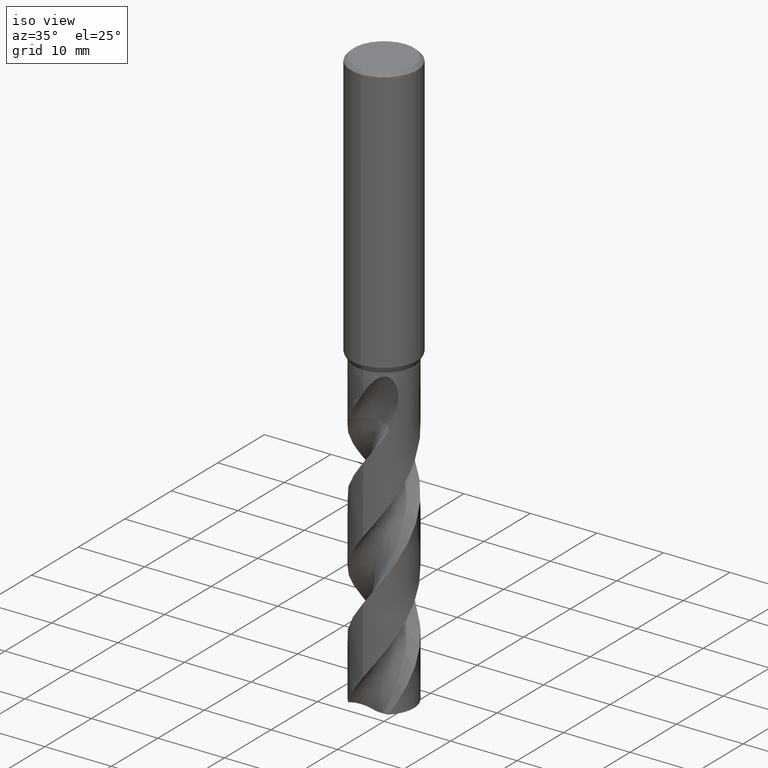
[diagram: clean part render]
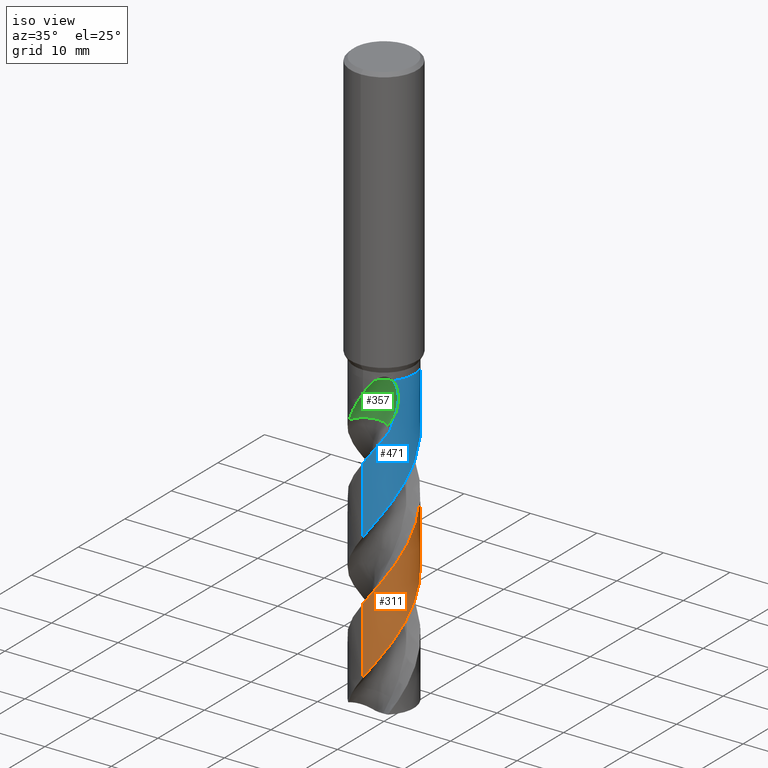
[diagram: same view with three faces highlighted in distinct colors, each labeled with its STEP entity id]
A machine part, iso view with three faces highlighted in distinct colors.
Their STEP definitions:

[orange] entity #311 — the highlighted conical surface has half-angle 0 deg.
#311=ADVANCED_FACE('',(#808),#809,.T.);
#313=EDGE_CURVE('',#571,#619,#811,.T.);
#317=EDGE_CURVE('',#377,#491,#815,.T.);
#377=VERTEX_POINT('',#879);
#463=EDGE_CURVE('',#571,#491,#972,.T.);
#491=VERTEX_POINT('',#1003);
#571=VERTEX_POINT('',#1092);
#611=EDGE_CURVE('',#377,#619,#1138,.T.);
#619=VERTEX_POINT('',#1147);
#808=FACE_OUTER_BOUND('',#1664,.T.);
#809=CONICAL_SURFACE('',#1665,4.49995,2.20448182881086E-006);
#811=LINE('',#1668,#1669);
#815=LINE('',#1676,#1677);
#879=CARTESIAN_POINT('',(-4.1656437967118E-015,-4.49998967546559,-82.6787048212013));
#972=B_SPLINE_CURVE_WITH_KNOTS('',3,(#3671,#3672,#3673,#3674,#3675,#3676,#3677,#3678,#3679,#3680,#3681,#3682,#3683,#3684,#3685,#3686,#3687,#3688,#3689,#3690,#3691,#3692,#3693,#3694,#3695,#3696,#3697,#3698,#3699,#3700,#3701,#3702,#3703,#3704,#3705,#3706,#3707,#3708,#3709,#3710,#3711,#3712,#3713,#3714,#3715,#3716,#3717,#3718,#3719,#3720,#3721,#3722,#3723,#3724,#3725,#3726,#3727,#3728,#3729,#3730,#3731,#3732,#3733,#3734,#3735,#3736,#3737,#3738,#3739,#3740,#3741,#3742,#3743,#3744,#3745,#3746,#3747,#3748,#3749,#3750,#3751,#3752,#3753,#3754,#3755,#3756,#3757,#3758,#3759,#3760,#3761,#3762),.UNSPECIFIED.,.F.,.F.,(4,2,2,2,2,2,2,2,2,2,2,2,2,2,2,2,2,2,2,2,2,2,2,2,2,2,2,2,2,2,2,2,2,2,2,2,2,2,2,2,2,2,2,2,2,4),(0.0,0.18683790359587,0.303060575358205,0.370177943652661,0.861059292407231,1.0336613293908,1.144436130255,1.2486872481506,1.38874266630015,1.54454257304688,1.58485242873205,2.1698954438549,2.55907528347273,2.95156308593388,3.37161300508622,4.52186148246892,5.05269924747359,7.48727282725072,8.10399743339253,9.34060582031127,9.48730899730632,11.0891194292907,13.5788627031115,14.8125527251756,16.0436996368139,18.6294357483051,19.0542806023093,20.6879571243659,21.9317965502293,21.9807798994464,24.8028794454602,25.2510841381525,26.8041715479037,29.2919290876659,30.5258848129155,31.7529386297897,33.6201044852787,34.8491749314263,37.431729547501,37.8536049763399,39.4823315072267,41.629333827577,43.2294519417304,44.4325255172341,46.2472505502495,48.0718266755914),.UNSPECIFIED.);
#1003=CARTESIAN_POINT('',(-1.05702068724905E-015,-4.49996747261341,-72.6070172730487));
#1092=CARTESIAN_POINT('',(4.68682386247783E-013,4.4999253413454,-53.4953750419703));
#1138=B_SPLINE_CURVE_WITH_KNOTS('',3,(#4694,#4695,#4696,#4697,#4698,#4699,#4700,#4701,#4702,#4703,#4704,#4705,#4706,#4707,#4708,#4709,#4710,#4711,#4712,#4713,#4714,#4715,#4716,#4717,#4718,#4719,#4720,#4721,#4722,#4723,#4724,#4725,#4726,#4727,#4728,#4729,#4730,#4731,#4732,#4733,#4734,#4735,#4736,#4737,#4738,#4739,#4740,#4741,#4742,#4743,#4744,#4745,#4746,#4747,#4748,#4749,#4750,#4751,#4752,#4753,#4754,#4755,#4756,#4757,#4758,#4759,#4760,#4761,#4762,#4763,#4764,#4765,#4766,#4767,#4768,#4769,#4770,#4771,#4772,#4773),.UNSPECIFIED.,.F.,.F.,(4,2,2,2,2,2,2,2,2,2,2,2,2,2,2,2,2,2,2,2,2,2,2,2,2,2,2,2,2,2,2,2,2,2,2,2,2,2,2,4),(0.0,2.33680212910897,3.27924067887444,5.4592230345403,6.51468087450437,7.75993383269143,10.2223819571482,10.8330408138003,13.2978420873042,13.8876874891027,16.3592074409962,17.349163024776,19.5602745229972,20.1418048250435,22.6210733348974,23.4968128668138,25.9745633385095,26.5889144253962,29.0682132855279,29.6639600579411,32.1502943909303,33.248890918656,35.42230125904,35.9611128423146,38.376432469333,39.6141700968301,40.127823779556,40.6099819134643,42.407537256508,43.3447997838244,43.8793749484293,45.7265513681427,46.9465694555488,48.2985215131928,48.9744437533264,49.4647785574207,49.904773406731,50.4698778533234,51.6695420671085,53.4365331377016),.UNSPECIFIED.);
#1147=CARTESIAN_POINT('',(2.72577102974582E-014,4.49994754214656,-63.5661322044039));
#1664=EDGE_LOOP('',(#5284,#5285,#5286,#5287));
#1665=AXIS2_PLACEMENT_3D('',#5288,#5289,#5290);
#1668=CARTESIAN_POINT('',(-5.51641727481669E-016,4.49995,-64.6810669729011));
#1669=VECTOR('',#5291,1.0);
#1676=CARTESIAN_POINT('',(5.50491744894932E-016,-4.49995,-64.6810669729011));
#1677=VECTOR('',#5293,1.0);
#3671=CARTESIAN_POINT('',(-3.12778793643585,3.23514724931657,-48.809));
#3672=CARTESIAN_POINT('',(-3.10234241230073,3.25974851338234,-48.8602446530444));
#3673=CARTESIAN_POINT('',(-3.07653912192927,3.28411598617549,-48.9114458344227));
#3674=CARTESIAN_POINT('',(-3.03398033542783,3.32335597496742,-48.9943801691706));
#3675=CARTESIAN_POINT('',(-3.01751085060052,3.33831798367657,-49.0261203188842));
#3676=CARTESIAN_POINT('',(-2.99124463757365,3.36182427072306,-49.076141171942));
#3677=CARTESIAN_POINT('',(-2.98157551341833,3.37040296022369,-49.0944295868799));
#3678=CARTESIAN_POINT('',(-2.90068589815738,3.44154702731484,-49.2463568399934));
#3679=CARTESIAN_POINT('',(-2.82772616152931,3.50181627341295,-49.3764496731637));
#3680=CARTESIAN_POINT('',(-2.72342923033344,3.58236770600933,-49.5536717763989));
#3681=CARTESIAN_POINT('',(-2.69597691172005,3.60307552425301,-49.599572852649));
#3682=CARTESIAN_POINT('',(-2.65029510809127,3.63671278882903,-49.6748955758792));
#3683=CARTESIAN_POINT('',(-2.63231258702841,3.64975049493423,-49.7042845693022));
#3684=CARTESIAN_POINT('',(-2.59714782310832,3.67484910160833,-49.7613124751894));
#3685=CARTESIAN_POINT('',(-2.57999781226208,3.68691014689667,-49.7889250000194));
#3686=CARTESIAN_POINT('',(-2.53956443354151,3.71492443083201,-49.8536308174126));
#3687=CARTESIAN_POINT('',(-2.51622719378134,3.73077114375857,-49.8906754415509));
#3688=CARTESIAN_POINT('',(-2.4666067681486,3.76378722329975,-49.9689853235328));
#3689=CARTESIAN_POINT('',(-2.44032896177776,3.78087731938001,-50.0101912737705));
#3690=CARTESIAN_POINT('',(-2.40707712762518,3.80201331580773,-50.0621631205709));
#3691=CARTESIAN_POINT('',(-2.40030885819585,3.80628994494193,-50.0727352217059));
#3692=CARTESIAN_POINT('',(-2.29391635802218,3.87311591370691,-50.2389035487542));
#3693=CARTESIAN_POINT('',(-2.19266494945719,3.9312693868656,-50.3963700191282));
#3694=CARTESIAN_POINT('',(-2.02201022190424,4.0207800931677,-50.6579561891188));
#3695=CARTESIAN_POINT('',(-1.9529976408044,4.05474758461695,-50.7627539184552));
#3696=CARTESIAN_POINT('',(-1.81283564170355,4.11933364242733,-50.9729718410298));
#3697=CARTESIAN_POINT('',(-1.74152600440663,4.14998903565729,-51.0786114782123));
#3698=CARTESIAN_POINT('',(-1.59209338964234,4.20968444515237,-51.2968461371374));
#3699=CARTESIAN_POINT('',(-1.51419199593283,4.23832924907109,-51.408799569282));
#3700=CARTESIAN_POINT('',(-1.21933659653469,4.33756213953638,-51.8284392771185));
#3701=CARTESIAN_POINT('',(-0.998312203470115,4.39368353176344,-52.1342607248324));
#3702=CARTESIAN_POINT('',(-0.670699929667548,4.45089878420606,-52.5839118505092));
#3703=CARTESIAN_POINT('',(-0.56673476256252,4.46532384528898,-52.7261188433654));
#3704=CARTESIAN_POINT('',(0.0158593566014373,4.52551586542829,-53.5196625584769));
#3705=CARTESIAN_POINT('',(0.499315127278846,4.4979838398345,-54.1646465473792));
#3706=CARTESIAN_POINT('',(1.08860454669283,4.36797144679173,-54.9805246186605));
#3707=CARTESIAN_POINT('',(1.20658027979862,4.33686466775295,-55.1454224296842));
#3708=CARTESIAN_POINT('',(1.55683757899981,4.22911500182635,-55.6410268865573));
#3709=CARTESIAN_POINT('',(1.78435609493581,4.13827295236342,-55.9710169332416));
#3710=CARTESIAN_POINT('',(2.02940858502102,4.01643220847865,-56.3408102490221));
#3711=CARTESIAN_POINT('',(2.05526586295113,4.00326238467319,-56.3800192543787));
#3712=CARTESIAN_POINT('',(2.36194350630933,3.84330855619634,-56.8475809040067));
#3713=CARTESIAN_POINT('',(2.62668260222406,3.66747604444923,-57.2757420245328));
#3714=CARTESIAN_POINT('',(3.25007789231719,3.15104322114891,-58.3700082825769));
#3715=CARTESIAN_POINT('',(3.57511033457675,2.7767376310157,-59.0302286434329));
#3716=CARTESIAN_POINT('',(3.96073664821482,2.14976783948637,-60.0264826331519));
#3717=CARTESIAN_POINT('',(4.0714889833312,1.93185777441371,-60.355952693659));
#3718=CARTESIAN_POINT('',(4.2564462157419,1.48038173816258,-61.0149840046461));
#3719=CARTESIAN_POINT('',(4.33031295220701,1.24786419378132,-61.3430649871292));
#3720=CARTESIAN_POINT('',(4.49985094227359,0.512237703931023,-62.3642128600196));
#3721=CARTESIAN_POINT('',(4.52897578723537,-0.00241840789649028,-63.051440829232));
#3722=CARTESIAN_POINT('',(4.46127844489325,-0.594646182103736,-63.8564810470677));
#3723=CARTESIAN_POINT('',(4.44938890987139,-0.677893792995244,-63.9700389476567));
#3724=CARTESIAN_POINT('',(4.3805352380679,-1.07932261725527,-64.5208244066011));
#3725=CARTESIAN_POINT('',(4.29170119064676,-1.39120129412134,-64.9575883471686));
#3726=CARTESIAN_POINT('',(4.07766262936973,-1.91907921244736,-65.7274695379777));
#3727=CARTESIAN_POINT('',(3.96655753013111,-2.13931391151557,-66.0592844478257));
#3728=CARTESIAN_POINT('',(3.83290145888576,-2.35765661126346,-66.4050958174115));
#3729=CARTESIAN_POINT('',(3.82781152138669,-2.36591154726916,-66.4181975435707));
#3730=CARTESIAN_POINT('',(3.52795217461566,-2.84872821486921,-67.1861264725194));
#3731=CARTESIAN_POINT('',(3.14712120059219,-3.26462536762721,-67.936918975901));
#3732=CARTESIAN_POINT('',(2.62884158444171,-3.65331454758851,-68.8117669480431));
#3733=CARTESIAN_POINT('',(2.55627937069931,-3.70444923681183,-68.9315900207931));
#3734=CARTESIAN_POINT('',(2.22579729709219,-3.92301107329704,-69.4672515078753));
#3735=CARTESIAN_POINT('',(1.95256845644276,-4.06591988853053,-69.8828299292249));
#3736=CARTESIAN_POINT('',(1.2093535757821,-4.36231586922043,-70.9645587041532));
#3737=CARTESIAN_POINT('',(0.725041770083323,-4.46837157989668,-71.6248842837038));
#3738=CARTESIAN_POINT('',(-0.0104272915693735,-4.50657537603774,-72.6215076190853));
#3739=CARTESIAN_POINT('',(-0.255050474242373,-4.49938143831887,-72.9512980105845));
#3740=CARTESIAN_POINT('',(-0.739645845688141,-4.44541948591604,-73.6098715099131));
#3741=CARTESIAN_POINT('',(-0.978543290623478,-4.39899747922616,-73.9372063860257));
#3742=CARTESIAN_POINT('',(-1.56836372434701,-4.23397917782504,-74.7658042780405));
#3743=CARTESIAN_POINT('',(-1.91089269757003,-4.09086205534607,-75.2646042925274));
#3744=CARTESIAN_POINT('',(-2.44364882964785,-3.78651249623113,-76.0933679048809));
#3745=CARTESIAN_POINT('',(-2.64485745440732,-3.6487984316127,-76.4212878548532));
#3746=CARTESIAN_POINT('',(-3.23108546525324,-3.17353845786324,-77.4421892566622));
#3747=CARTESIAN_POINT('',(-3.57078756394346,-2.78592024738515,-78.1292916760643));
#3748=CARTESIAN_POINT('',(-3.88170339289574,-2.27798257559527,-78.9335620250523));
#3749=CARTESIAN_POINT('',(-3.92334285906946,-2.20549286847971,-79.046448501752));
#3750=CARTESIAN_POINT('',(-4.11577428801733,-1.84779005379825,-79.5957226188071));
#3751=CARTESIAN_POINT('',(-4.23766630888224,-1.54796997910848,-80.0316743227031));
#3752=CARTESIAN_POINT('',(-4.44345601546818,-0.8286077591632,-81.04302976595));
#3753=CARTESIAN_POINT('',(-4.5018337335531,-0.405151729452918,-81.614246663171));
#3754=CARTESIAN_POINT('',(-4.49853578134804,0.336880451762036,-82.6183263289882));
#3755=CARTESIAN_POINT('',(-4.46366228385649,0.6529293680291,-83.0457214980072));
#3756=CARTESIAN_POINT('',(-4.34471970530647,1.19593328507147,-83.7962806612961));
#3757=CARTESIAN_POINT('',(-4.27527148843984,1.42433322627444,-84.1175951220404));
#3758=CARTESIAN_POINT('',(-4.05672364981276,1.98041295886397,-84.9265110627169));
#3759=CARTESIAN_POINT('',(-3.8856152210784,2.29813637602568,-85.4118136863882));
#3760=CARTESIAN_POINT('',(-3.46992935423713,2.88798469074985,-86.3866803014667));
#3761=CARTESIAN_POINT('',(-3.22660888872388,3.15751450903315,-86.8733754637238));
#3762=CARTESIAN_POINT('',(-2.95363779304501,3.39499982142802,-87.3621339458021));
#4694=CARTESIAN_POINT('',(-3.13168728307313,-3.23149110489847,-87.3621339458021));
#4695=CARTESIAN_POINT('',(-2.79986246655599,-3.55306566713435,-86.7350611147313));
#4696=CARTESIAN_POINT('',(-2.41931807136374,-3.82268708352842,-86.1100701296137));
#4697=CARTESIAN_POINT('',(-1.83521490318923,-4.11303866146682,-85.2321782883056));
#4698=CARTESIAN_POINT('',(-1.66238672643526,-4.18586752701925,-84.980573078044));
#4699=CARTESIAN_POINT('',(-1.0767758910533,-4.39068346058886,-84.1441869429795));
#4700=CARTESIAN_POINT('',(-0.649912593156497,-4.47380378378019,-83.5561029921032));
#4701=CARTESIAN_POINT('',(-0.00820594335859307,-4.50486006235474,-82.6893896842287));
#4702=CARTESIAN_POINT('',(0.201551859395831,-4.50035239897883,-82.4076885535386));
#4703=CARTESIAN_POINT('',(0.656338493267588,-4.45872265536625,-81.7913076068468));
#4704=CARTESIAN_POINT('',(0.899759727909462,-4.41598605868359,-81.4559596912196));
#4705=CARTESIAN_POINT('',(1.60900420617697,-4.23060356570481,-80.4626725958122));
#4706=CARTESIAN_POINT('',(2.05647265345239,-4.03201261376533,-79.8159416004618));
#4707=CARTESIAN_POINT('',(2.56422064246406,-3.69988403780334,-78.9928933270896));
#4708=CARTESIAN_POINT('',(2.66228396728069,-3.62996305221645,-78.8288730072809));
#4709=CARTESIAN_POINT('',(3.14245993197919,-3.25759389917791,-78.0047503083298));
#4710=CARTESIAN_POINT('',(3.47612276311307,-2.89885542264653,-77.3573854200472));
#4711=CARTESIAN_POINT('',(3.81044268746321,-2.39664010792831,-76.5396648853197));
#4712=CARTESIAN_POINT('',(3.87107700662628,-2.29740408074124,-76.3813128017781));
#4713=CARTESIAN_POINT('',(4.16557103945988,-1.77063976705101,-75.5622535818993));
#4714=CARTESIAN_POINT('',(4.33269860503441,-1.30963320068644,-74.9141332192812));
#4715=CARTESIAN_POINT('',(4.45870752892896,-0.638585720457889,-73.989530891933));
#4716=CARTESIAN_POINT('',(4.48219751154566,-0.444767125691329,-73.7238506769823));
#4717=CARTESIAN_POINT('',(4.5172513771739,0.186109210999759,-72.8685584158562));
#4718=CARTESIAN_POINT('',(4.47793965024903,0.622739679819713,-72.2872016436771));
#4719=CARTESIAN_POINT('',(4.3498645617691,1.15823578961959,-71.5411540388604));
#4720=CARTESIAN_POINT('',(4.31900559072666,1.26844007559974,-71.3853522646004));
#4721=CARTESIAN_POINT('',(4.13486308967079,1.84121509419625,-70.5684913559287));
#4722=CARTESIAN_POINT('',(3.9113523625305,2.27793273361661,-69.9199799030472));
#4723=CARTESIAN_POINT('',(3.51955756022668,2.8092784945475,-69.0263259088699));
#4724=CARTESIAN_POINT('',(3.40962147820031,2.94172133793468,-68.792020286025));
#4725=CARTESIAN_POINT('',(2.96041433069383,3.4238286958288,-67.8989219777058));
#4726=CARTESIAN_POINT('',(2.57323997192767,3.72350406430365,-67.2520853163403));
#4727=CARTESIAN_POINT('',(2.03985329574824,4.01286921696057,-66.4289341975398));
#4728=CARTESIAN_POINT('',(1.93176151747013,4.06601026780428,-66.2649185261708));
#4729=CARTESIAN_POINT('',(1.3761241610763,4.31195864088622,-65.4408821666907));
#4730=CARTESIAN_POINT('',(0.902047794887706,4.43540226865888,-64.7935875376313));
#4731=CARTESIAN_POINT('',(0.300932586266201,4.49139796043046,-63.9752858705775));
#4732=CARTESIAN_POINT('',(0.184344415297354,4.49768616769331,-63.8162958364489));
#4733=CARTESIAN_POINT('',(-0.419597722003774,4.5067588779907,-62.9965448987817));
#4734=CARTESIAN_POINT('',(-0.904715611935219,4.43493953695607,-62.3483403358814));
#4735=CARTESIAN_POINT('',(-1.57434901872603,4.22105631508305,-61.3963752196446));
#4736=CARTESIAN_POINT('',(-1.77463918796129,4.14085808168044,-61.1029718124997));
#4737=CARTESIAN_POINT('',(-2.3526013555818,3.85966336441614,-60.2337326683595));
#4738=CARTESIAN_POINT('',(-2.70761979869309,3.61935011533647,-59.6649371569323));
#4739=CARTESIAN_POINT('',(-3.10136216637176,3.26222941209874,-58.9439874085501));
#4740=CARTESIAN_POINT('',(-3.17689066124188,3.18871549713084,-58.8004019559114));
#4741=CARTESIAN_POINT('',(-3.57657420914357,2.77141348637392,-58.0156712492933));
#4742=CARTESIAN_POINT('',(-3.84789584878266,2.38063246130944,-57.3858962152384));
#4743=CARTESIAN_POINT('',(-4.15893889408506,1.73537271111702,-56.4180829487213));
#4744=CARTESIAN_POINT('',(-4.24637478634398,1.50880064381814,-56.0887648579445));
#4745=CARTESIAN_POINT('',(-4.34368801736214,1.17977584311203,-55.6246663064232));
#4746=CARTESIAN_POINT('',(-4.36898742268578,1.08233482933922,-55.4886814145431));
#4747=CARTESIAN_POINT('',(-4.41166416110175,0.891913353924181,-55.2248479962655));
#4748=CARTESIAN_POINT('',(-4.42941527560923,0.799099540604124,-55.0970194263374));
#4749=CARTESIAN_POINT('',(-4.49945639738542,0.358075873489744,-54.4930561263145));
#4750=CARTESIAN_POINT('',(-4.51371182901481,0.00478684639450966,-54.0190391709624));
#4751=CARTESIAN_POINT('',(-4.47238740307571,-0.529964591694633,-53.2948562139244));
#4752=CARTESIAN_POINT('',(-4.44703977480557,-0.711788546825658,-53.0474653130317));
#4753=CARTESIAN_POINT('',(-4.3901296919894,-0.993461706639181,-52.6567870282656));
#4754=CARTESIAN_POINT('',(-4.36604721815895,-1.09443730250362,-52.5147560745739));
#4755=CARTESIAN_POINT('',(-4.24279968463427,-1.54192302628225,-51.8835295949365));
#4756=CARTESIAN_POINT('',(-4.12650462795643,-1.80429687057606,-51.5071005788542));
#4757=CARTESIAN_POINT('',(-3.99194950767507,-2.08051816437917,-51.1029174702718));
#4758=CARTESIAN_POINT('',(-3.93470712623882,-2.18665177214611,-50.9420596015931));
#4759=CARTESIAN_POINT('',(-3.80743023350446,-2.40209205250394,-50.5979444039779));
#4760=CARTESIAN_POINT('',(-3.73739988717134,-2.50929104302828,-50.4160548071858));
#4761=CARTESIAN_POINT('',(-3.62930256052059,-2.66106780747601,-50.1370178129093));
#4762=CARTESIAN_POINT('',(-3.60651631430297,-2.69151781105095,-50.0769849604618));
#4763=CARTESIAN_POINT('',(-3.56013542912321,-2.75240426658002,-49.9616313655587));
#4764=CARTESIAN_POINT('',(-3.53999291938334,-2.77827791522591,-49.9136236063034));
#4765=CARTESIAN_POINT('',(-3.50040168380363,-2.82795790984955,-49.8233069758375));
#4766=CARTESIAN_POINT('',(-3.48112778255354,-2.85166103650283,-49.7809964560704));
#4767=CARTESIAN_POINT('',(-3.43573578995514,-2.90629782328638,-49.6851620033897));
#4768=CARTESIAN_POINT('',(-3.40928085134258,-2.9373099176569,-49.6319780403548));
#4769=CARTESIAN_POINT('',(-3.32349041317262,-3.03504110962034,-49.4678078498903));
#4770=CARTESIAN_POINT('',(-3.26094814653178,-3.10235402369362,-49.3596572921212));
#4771=CARTESIAN_POINT('',(-3.09441593189277,-3.27011524922245,-49.0988921664458));
#4772=CARTESIAN_POINT('',(-2.98599314281817,-3.3699772282562,-48.9513064665904));
#4773=CARTESIAN_POINT('',(-2.86743909114319,-3.4680005995758,-48.809));
#5284=ORIENTED_EDGE('',*,*,#313,.F.);
#5285=ORIENTED_EDGE('',*,*,#463,.T.);
#5286=ORIENTED_EDGE('',*,*,#317,.F.);
#5287=ORIENTED_EDGE('',*,*,#611,.T.);
#5288=CARTESIAN_POINT('',(0.0,0.0,-64.6810669729011));
#5289=DIRECTION('',(0.0,-0.0,-1.0));
#5290=DIRECTION('',(0.0,1.0,0.0));
#5291=DIRECTION('',(-2.69962245444557E-022,2.20448182880907E-006,-0.99999999999757));
#5293=DIRECTION('',(-2.69962245444557E-022,2.20448182880907E-006,0.99999999999757));

[blue] entity #471 — the highlighted conical surface has half-angle 0 deg.
#279=VERTEX_POINT('',#775);
#293=VERTEX_POINT('',#789);
#335=EDGE_CURVE('',#515,#393,#835,.T.);
#387=EDGE_CURVE('',#583,#495,#890,.T.);
#393=VERTEX_POINT('',#896);
#445=VERTEX_POINT('',#952);
#467=EDGE_CURVE('',#445,#293,#976,.T.);
#471=ADVANCED_FACE('',(#980),#981,.T.);
#495=VERTEX_POINT('',#1007);
#515=VERTEX_POINT('',#1029);
#533=EDGE_CURVE('',#735,#583,#1049,.T.);
#583=VERTEX_POINT('',#1107);
#627=EDGE_CURVE('',#735,#293,#1155,.T.);
#645=EDGE_CURVE('',#393,#279,#1176,.T.);
#693=EDGE_CURVE('',#515,#495,#1230,.T.);
#711=EDGE_CURVE('',#279,#445,#1249,.T.);
#735=VERTEX_POINT('',#1274);
#775=CARTESIAN_POINT('',(3.66130318037754,-2.6161126192005,-46.3450274609782));
#789=CARTESIAN_POINT('',(-4.78452782545262E-013,-4.49992534134538,-53.4953750419703));
#835=CIRCLE('',#1703,4.4999);
#890=B_SPLINE_CURVE_WITH_KNOTS('',3,(#1871,#1872,#1873,#1874,#1875,#1876,#1877,#1878,#1879,#1880,#1881,#1882,#1883,#1884),.UNSPECIFIED.,.F.,.F.,(4,2,2,2,2,2,4),(0.0,2.20475554731741,3.40859553382175,4.49896063714113,5.76568451325686,7.28729789347321,8.07029609891399),.UNSPECIFIED.);
#896=CARTESIAN_POINT('',(3.40940975058335,-2.9368393150847,-42.0));
#952=CARTESIAN_POINT('',(3.12778793643585,-3.23514724931657,-48.809));
#976=B_SPLINE_CURVE_WITH_KNOTS('',3,(#3787,#3788,#3789,#3790,#3791,#3792,#3793,#3794,#3795,#3796,#3797,#3798,#3799,#3800,#3801,#3802,#3803,#3804,#3805,#3806,#3807,#3808,#3809,#3810,#3811,#3812,#3813,#3814,#3815,#3816,#3817,#3818,#3819,#3820,#3821,#3822,#3823,#3824,#3825,#3826,#3827,#3828,#3829,#3830,#3831,#3832,#3833,#3834,#3835,#3836,#3837,#3838,#3839,#3840,#3841,#3842,#3843,#3844,#3845,#3846,#3847,#3848,#3849,#3850,#3851,#3852,#3853,#3854,#3855,#3856,#3857,#3858,#3859,#3860,#3861,#3862,#3863,#3864,#3865,#3866,#3867,#3868,#3869,#3870,#3871,#3872,#3873,#3874,#3875,#3876,#3877,#3878),.UNSPECIFIED.,.F.,.F.,(4,2,2,2,2,2,2,2,2,2,2,2,2,2,2,2,2,2,2,2,2,2,2,2,2,2,2,2,2,2,2,2,2,2,2,2,2,2,2,2,2,2,2,2,2,4),(0.0,0.186837903831747,0.303060575486544,0.370177943563527,0.861059292617235,1.03366132974205,1.1444361306066,1.24868724846205,1.38874266653107,1.54454257318178,1.58485242890453,2.16989544355807,2.55907528289923,2.9515630851444,3.37161299936185,4.52186147595583,5.05269922730908,7.48727273301139,8.10399733752969,9.34060571961746,9.48730890678113,11.0891192293209,13.5788625091689,14.8125525260481,16.0436994481211,18.6294355339242,19.0542804417132,20.6879567547197,21.9317961791301,21.9807795358462,24.802878485986,25.2510834182851,26.8041700987059,29.2919276600639,30.525883345021,31.7529372328043,33.6201010355565,34.8491716611566,37.4317258425612,37.8536020730467,39.4823253270607,41.6293292643649,43.2294483616723,44.4325228181478,46.2472490038725,48.071826279848),.UNSPECIFIED.);
#980=FACE_OUTER_BOUND('',#3902,.T.);
#981=CONICAL_SURFACE('',#3903,4.49995,2.20448182881086E-006);
#1007=CARTESIAN_POINT('',(-1.33320944013009E-012,4.49990446542857,-44.0256136904849));
#1029=CARTESIAN_POINT('',(-5.51352983418506E-016,4.4999,-42.0));
#1049=B_SPLINE_CURVE_WITH_KNOTS('',3,(#4280,#4281,#4282,#4283,#4284,#4285,#4286,#4287,#4288,#4289,#4290,#4291,#4292,#4293,#4294,#4295,#4296,#4297,#4298,#4299,#4300,#4301,#4302,#4303,#4304,#4305,#4306,#4307,#4308,#4309,#4310,#4311,#4312,#4313,#4314,#4315,#4316,#4317,#4318,#4319,#4320,#4321,#4322,#4323,#4324,#4325,#4326,#4327,#4328,#4329,#4330,#4331,#4332,#4333,#4334,#4335,#4336,#4337,#4338,#4339,#4340,#4341,#4342,#4343,#4344,#4345,#4346,#4347,#4348,#4349,#4350,#4351,#4352,#4353,#4354,#4355,#4356,#4357,#4358,#4359),.UNSPECIFIED.,.F.,.F.,(4,2,2,2,2,2,2,2,2,2,2,2,2,2,2,2,2,2,2,2,2,2,2,2,2,2,2,2,2,2,2,2,2,2,2,2,2,2,2,4),(0.0,2.33680212377957,3.27924067551566,5.45922298406233,6.51468084761761,7.75993380819906,10.2223819340773,10.8330407916629,13.2978420661797,13.8876874497238,16.3592074030605,17.349162844891,19.5602718468744,20.1418046346869,22.6210732071348,23.496812256514,25.9745628110826,26.5889139295122,29.0682129147522,29.6639591988363,32.1502937223343,33.2488865367003,35.4222711966253,35.9610805510369,38.3763465433414,39.6140868550911,40.1277455289277,40.6099100932209,42.4074824584705,43.3430638700968,43.8766262820531,45.7315283011536,46.9512835155706,48.305281477593,48.9765393567973,49.4547912362447,49.8859614607023,50.442557883741,51.5745962522468,53.3377781698529),.UNSPECIFIED.);
#1107=CARTESIAN_POINT('',(2.86743909114319,3.4680005995758,-48.809));
#1155=LINE('',#4806,#4807);
#1176=B_SPLINE_CURVE_WITH_KNOTS('',3,(#4845,#4846,#4847,#4848,#4849,#4850,#4851,#4852),.UNSPECIFIED.,.F.,.F.,(4,2,2,4),(0.0,0.84358069295229,2.02320379737333,3.14361693651512),.UNSPECIFIED.);
#1230=LINE('',#4965,#4966);
#1249=B_SPLINE_CURVE_WITH_KNOTS('',3,(#5105,#5106,#5107,#5108),.UNSPECIFIED.,.F.,.F.,(4,4),(0.0,2.58609769236665),.UNSPECIFIED.);
#1274=CARTESIAN_POINT('',(-3.5251749755537E-014,-4.49994754214657,-63.566132204404));
#1703=AXIS2_PLACEMENT_3D('',#5321,#5322,#5323);
#1871=CARTESIAN_POINT('',(2.86743909114319,3.4680005995758,-48.809));
#1872=CARTESIAN_POINT('',(2.57060818980487,3.71342683192748,-48.1830905773919));
#1873=CARTESIAN_POINT('',(2.22931727810948,3.93159578990252,-47.5995410141835));
#1874=CARTESIAN_POINT('',(1.63420581592681,4.19900683373959,-46.6246875230133));
#1875=CARTESIAN_POINT('',(1.42005682924299,4.27593078298411,-46.2817029220987));
#1876=CARTESIAN_POINT('',(1.00549246402143,4.39089544723335,-45.617778438669));
#1877=CARTESIAN_POINT('',(0.806927916765822,4.43151205506276,-45.2999326188931));
#1878=CARTESIAN_POINT('',(0.377121619451696,4.49013100164452,-44.6148969472526));
#1879=CARTESIAN_POINT('',(0.142289265967091,4.50389295240663,-44.2423446901563));
#1880=CARTESIAN_POINT('',(-0.379212216417572,4.49292245619943,-43.4453366416554));
#1881=CARTESIAN_POINT('',(-0.688409043272584,4.45899345055526,-42.991833151282));
#1882=CARTESIAN_POINT('',(-1.17218084210875,4.3478203201446,-42.3850996714974));
#1883=CARTESIAN_POINT('',(-1.34935783848793,4.29729149417252,-42.1804716631296));
#1884=CARTESIAN_POINT('',(-1.53353171754749,4.23052957456579,-42.0));
#3787=CARTESIAN_POINT('',(3.12778793643585,-3.23514724931657,-48.809));
#3788=CARTESIAN_POINT('',(3.10234241226861,-3.2597485134134,-48.8602446531091));
#3789=CARTESIAN_POINT('',(3.07653912186477,-3.28411598623639,-48.9114458345507));
#3790=CARTESIAN_POINT('',(3.03398033534745,-3.32335597504066,-48.9943801693259));
#3791=CARTESIAN_POINT('',(3.01751085052991,-3.33831798374036,-49.0261203190196));
#3792=CARTESIAN_POINT('',(2.99124463753005,-3.36182427076173,-49.0761411720244));
#3793=CARTESIAN_POINT('',(2.98157551340447,-3.37040296023585,-49.0944295869058));
#3794=CARTESIAN_POINT('',(2.90068589802508,-3.44154702743137,-49.2463568402421));
#3795=CARTESIAN_POINT('',(2.82772616144898,-3.50181627347509,-49.3764496733003));
#3796=CARTESIAN_POINT('',(2.72342923035437,-3.58236770599321,-49.5536717763633));
#3797=CARTESIAN_POINT('',(2.69597691173728,-3.60307552424029,-49.5995728526205));
#3798=CARTESIAN_POINT('',(2.65029510809367,-3.63671278882721,-49.6748955758751));
#3799=CARTESIAN_POINT('',(2.63231258703299,-3.64975049493095,-49.7042845692948));
#3800=CARTESIAN_POINT('',(2.59714782310976,-3.67484910160729,-49.761312475187));
#3801=CARTESIAN_POINT('',(2.57999781226635,-3.68691014689375,-49.7889250000126));
#3802=CARTESIAN_POINT('',(2.53956443353887,-3.71492443083386,-49.8536308174169));
#3803=CARTESIAN_POINT('',(2.51622719377732,-3.73077114376126,-49.8906754415572));
#3804=CARTESIAN_POINT('',(2.46660676815204,-3.76378722329745,-49.9689853235274));
#3805=CARTESIAN_POINT('',(2.44032896178354,-3.78087731937628,-50.0101912737615));
#3806=CARTESIAN_POINT('',(2.40707712761745,-3.80201331581262,-50.062163120583));
#3807=CARTESIAN_POINT('',(2.40030885817742,-3.80628994495357,-50.0727352217347));
#3808=CARTESIAN_POINT('',(2.2939163579911,-3.8731159137253,-50.2389035488026));
#3809=CARTESIAN_POINT('',(2.19266494943079,-3.93126938687994,-50.3963700191688));
#3810=CARTESIAN_POINT('',(2.02201022188871,-4.02078009317546,-50.6579561891424));
#3811=CARTESIAN_POINT('',(1.95299764078976,-4.05474758462396,-50.7627539184772));
#3812=CARTESIAN_POINT('',(1.81283564167891,-4.11933364243836,-50.9729718410664));
#3813=CARTESIAN_POINT('',(1.74152600437987,-4.14998903566836,-51.0786114782517));
#3814=CARTESIAN_POINT('',(1.59209339050001,-4.20968444480941,-51.2968461358847));
#3815=CARTESIAN_POINT('',(1.51419199766571,-4.23832924843354,-51.4087995667896));
#3816=CARTESIAN_POINT('',(1.21933659926273,-4.33756213876697,-51.8284392733073));
#3817=CARTESIAN_POINT('',(0.998312206256321,-4.39368353112767,-52.1342607209871));
#3818=CARTESIAN_POINT('',(0.670699935154438,-4.45089878331663,-52.5839118429881));
#3819=CARTESIAN_POINT('',(0.566734770698655,-4.46532384419417,-52.7261188322472));
#3820=CARTESIAN_POINT('',(-0.015859331358982,-4.52551586398616,-53.5196625242601));
#3821=CARTESIAN_POINT('',(-0.499315087579334,-4.49798384269997,-54.1646464941883));
#3822=CARTESIAN_POINT('',(-1.08860449423433,-4.3679714598583,-54.9805245455819));
#3823=CARTESIAN_POINT('',(-1.20658022746112,-4.33686468230632,-55.1454223562342));
#3824=CARTESIAN_POINT('',(-1.55683752689931,-4.22911502095645,-55.6410268116212));
#3825=CARTESIAN_POINT('',(-1.78435604317553,-4.13827297463188,-55.9710168572264));
#3826=CARTESIAN_POINT('',(-2.02940853587046,-4.0164322333277,-56.3408101746038));
#3827=CARTESIAN_POINT('',(-2.05526581576621,-4.00326240891239,-56.3800191826851));
#3828=CARTESIAN_POINT('',(-2.36194344377077,-3.84330859286574,-56.8475808059884));
#3829=CARTESIAN_POINT('',(-2.62668252489288,-3.66747609797318,-57.2757418977318));
#3830=CARTESIAN_POINT('',(-3.25007781268484,-3.15104330349848,-58.3700081288985));
#3831=CARTESIAN_POINT('',(-3.57511026528807,-2.77673772047888,-59.0302284910581));
#3832=CARTESIAN_POINT('',(-3.96073659467425,-2.14976793802594,-60.0264824816359));
#3833=CARTESIAN_POINT('',(-4.07148893481931,-1.93185787653775,-60.3559525410837));
#3834=CARTESIAN_POINT('',(-4.25644617912232,-1.48038184380875,-61.0149838539266));
#3835=CARTESIAN_POINT('',(-4.33031292198008,-1.24786429911464,-61.3430648392488));
#3836=CARTESIAN_POINT('',(-4.49985092902717,-0.512237815639434,-62.3642127084475));
#3837=CARTESIAN_POINT('',(-4.52897578676987,0.00241829073285249,-63.0514406722331));
#3838=CARTESIAN_POINT('',(-4.461278459668,0.59464607277115,-63.8564808980749));
#3839=CARTESIAN_POINT('',(-4.44938892507137,0.677893694558919,-63.9700388130362));
#3840=CARTESIAN_POINT('',(-4.38053526630849,1.0793224903605,-64.5208242308006));
#3841=CARTESIAN_POINT('',(-4.29170124064413,1.3912011302957,-64.9575881163032));
#3842=CARTESIAN_POINT('',(-4.07766271978543,1.919079020307,-65.7274692516107));
#3843=CARTESIAN_POINT('',(-3.96655763097424,2.13931372454043,-66.0592841615003));
#3844=CARTESIAN_POINT('',(-3.83290156922936,2.35765643188007,-66.4050955329178));
#3845=CARTESIAN_POINT('',(-3.8278116313329,2.36591136939241,-66.4181972610519));
#3846=CARTESIAN_POINT('',(-3.52795236440081,2.84872795811529,-67.1861260412442));
#3847=CARTESIAN_POINT('',(-3.14712150153651,3.26462505850883,-67.9369184007191));
#3848=CARTESIAN_POINT('',(-2.62884198170034,3.6533142629093,-68.8117662881481));
#3849=CARTESIAN_POINT('',(-2.55627973343941,3.7044489876637,-68.9315894262456));
#3850=CARTESIAN_POINT('',(-2.22579775530522,3.92301080232299,-69.467250788053));
#3851=CARTESIAN_POINT('',(-1.95256905945561,4.06591958825818,-69.8828290205785));
#3852=CARTESIAN_POINT('',(-1.20935435492903,4.36231565426583,-70.964557619747));
#3853=CARTESIAN_POINT('',(-0.725042558754533,4.46837145298939,-71.6248832081504));
#3854=CARTESIAN_POINT('',(0.0104265006090731,4.50657537757854,-72.6215065506577));
#3855=CARTESIAN_POINT('',(0.25504967922626,4.49938148309297,-72.9512969361786));
#3856=CARTESIAN_POINT('',(0.739645071562392,4.44541961562831,-73.6098704518618));
#3857=CARTESIAN_POINT('',(0.978542541252218,4.39899764687424,-73.9372053494915));
#3858=CARTESIAN_POINT('',(1.56836263261244,4.23397954719072,-74.765802719679));
#3859=CARTESIAN_POINT('',(1.91089127333057,4.09086268414897,-75.264602198799));
#3860=CARTESIAN_POINT('',(2.44364722018136,3.78651353733996,-76.0933653209686));
#3861=CARTESIAN_POINT('',(2.64485593508061,3.64879953552928,-76.4212853202528));
#3862=CARTESIAN_POINT('',(3.23108410995579,3.17353982517947,-77.4421866626456));
#3863=CARTESIAN_POINT('',(3.57078632474797,2.78592182135669,-78.1292889918419));
#3864=CARTESIAN_POINT('',(3.88170243000453,2.27798422224122,-78.9335594491094));
#3865=CARTESIAN_POINT('',(3.92334200551249,2.20549439294468,-79.0464461404265));
#3866=CARTESIAN_POINT('',(4.11577333256719,1.8477920698858,-79.5957196018109));
#3867=CARTESIAN_POINT('',(4.23766527825237,1.54797266578176,-80.0316704434922));
#3868=CARTESIAN_POINT('',(4.44345545797061,0.828610915453142,-81.0430254629626));
#3869=CARTESIAN_POINT('',(4.50183350626,0.405154597912542,-81.6142427820767));
#3870=CARTESIAN_POINT('',(4.49853597064578,-0.336878111662014,-82.6183231622192));
#3871=CARTESIAN_POINT('',(4.46366260851437,-0.652927245786916,-83.0457186044058));
#3872=CARTESIAN_POINT('',(4.34472018329143,-1.19593158420669,-83.7962782803493));
#3873=CARTESIAN_POINT('',(4.27527199922191,-1.42433172311235,-84.1175929764132));
#3874=CARTESIAN_POINT('',(4.05672418246192,-1.98041191055385,-84.9265094759404));
#3875=CARTESIAN_POINT('',(3.88561571511913,-2.29813557751629,-85.4118124191682));
#3876=CARTESIAN_POINT('',(3.46992966972464,-2.88798434108698,-86.3866796707701));
#3877=CARTESIAN_POINT('',(3.22660906614556,-3.15751435467596,-86.8733751460479));
#3878=CARTESIAN_POINT('',(2.95363779304501,-3.394999821428,-87.362133945802));
#3902=EDGE_LOOP('',(#5455,#5456,#5457,#5458,#5459,#5460,#5461,#5462));
#3903=AXIS2_PLACEMENT_3D('',#5463,#5464,#5465);
#4280=CARTESIAN_POINT('',(3.13168728307313,3.23149110489847,-87.3621339458021));
#4281=CARTESIAN_POINT('',(2.79986246731276,3.55306566640095,-86.7350611161615));
#4282=CARTESIAN_POINT('',(2.41931807309393,3.82268708230373,-86.1100701324407));
#4283=CARTESIAN_POINT('',(1.83521490573001,4.11303866035091,-85.2321782920329));
#4284=CARTESIAN_POINT('',(1.66238672864993,4.1858675261564,-84.9805730812409));
#4285=CARTESIAN_POINT('',(1.07677590188494,4.39068345700471,-84.1441869583712));
#4286=CARTESIAN_POINT('',(0.649912613710216,4.47380377987986,-83.556103020175));
#4287=CARTESIAN_POINT('',(0.00820596892831227,4.50486006252403,-82.6893897186134));
#4288=CARTESIAN_POINT('',(-0.201551838525929,4.50035240013233,-82.4076885816891));
#4289=CARTESIAN_POINT('',(-0.656338477719899,4.45872265768239,-81.7913076280781));
#4290=CARTESIAN_POINT('',(-0.899759713002763,4.41598606174388,-81.4559597118791));
#4291=CARTESIAN_POINT('',(-1.60900419243431,4.23060357095004,-80.4626726154881));
#4292=CARTESIAN_POINT('',(-2.05647264057087,4.03201262037635,-79.8159416198085));
#4293=CARTESIAN_POINT('',(-2.56422063107079,3.69988404570603,-78.9928933459382));
#4294=CARTESIAN_POINT('',(-2.6622839562254,3.62996306032753,-78.8288730259041));
#4295=CARTESIAN_POINT('',(-3.14245992196279,3.25759390881083,-78.0047503269377));
#4296=CARTESIAN_POINT('',(-3.47612275414777,2.89885543339306,-77.3573854387337));
#4297=CARTESIAN_POINT('',(-3.81044267801213,2.3966401227769,-76.5396649092122));
#4298=CARTESIAN_POINT('',(-3.87107699568782,2.29740409898074,-76.3813128306896));
#4299=CARTESIAN_POINT('',(-4.16557102935763,1.77063979067803,-75.5622536163271));
#4300=CARTESIAN_POINT('',(-4.33269859749133,1.30963322557204,-74.9141332539911));
#4301=CARTESIAN_POINT('',(-4.45870752003181,0.638585773960807,-73.9895309654832));
#4302=CARTESIAN_POINT('',(-4.48219750214839,0.444767207797544,-73.7238507890458));
#4303=CARTESIAN_POINT('',(-4.51725135435534,-0.186108605963501,-72.8685592344404));
#4304=CARTESIAN_POINT('',(-4.47793975500949,-0.62273858714686,-72.2872030997307));
#4305=CARTESIAN_POINT('',(-4.34986485190763,-1.15823474869505,-71.5411555064887));
#4306=CARTESIAN_POINT('',(-4.31900576862883,-1.26843951364272,-71.3853530651335));
#4307=CARTESIAN_POINT('',(-4.13486313179622,-1.84121499979803,-70.5684914943904));
#4308=CARTESIAN_POINT('',(-3.91135241412223,-2.27793264539385,-69.9199800395209));
#4309=CARTESIAN_POINT('',(-3.51955768118954,-2.80927833694773,-69.0263261781374));
#4310=CARTESIAN_POINT('',(-3.40962166975117,-2.94172111005351,-68.7920206902992));
#4311=CARTESIAN_POINT('',(-2.96041463255488,-3.42382843495597,-67.8989225115384));
#4312=CARTESIAN_POINT('',(-2.57324029820633,-3.72350383945732,-67.2520858456997));
#4313=CARTESIAN_POINT('',(-2.03985363980248,-4.01286904217065,-66.4289347220988));
#4314=CARTESIAN_POINT('',(-1.93176186406089,-4.06601010315414,-66.2649190472735));
#4315=CARTESIAN_POINT('',(-1.37612452684524,-4.31195852432005,-65.4408826805211));
#4316=CARTESIAN_POINT('',(-0.90204816812503,-4.43540219332056,-64.7935880461949));
#4317=CARTESIAN_POINT('',(-0.300933059100268,-4.49139792613305,-63.9752865141356));
#4318=CARTESIAN_POINT('',(-0.184344989660074,-4.49768614146036,-63.8162966180381));
#4319=CARTESIAN_POINT('',(0.419597046200159,-4.5067589413106,-62.9965458077784));
#4320=CARTESIAN_POINT('',(0.90471495347332,-4.43493967238463,-62.3483412336419));
#4321=CARTESIAN_POINT('',(1.57434769598337,-4.2210567706603,-61.3963771170168));
#4322=CARTESIAN_POINT('',(1.77463719559898,-4.14085889628439,-61.1029747277798));
#4323=CARTESIAN_POINT('',(2.35259428818417,-3.85966710901864,-60.2337434581259));
#4324=CARTESIAN_POINT('',(2.70760906428429,-3.61935756054024,-59.6649545191824));
#4325=CARTESIAN_POINT('',(3.10134885916392,-3.26224204947324,-58.9440123426183));
#4326=CARTESIAN_POINT('',(3.17687734235426,-3.18872874867644,-58.8004275070547));
#4327=CARTESIAN_POINT('',(3.57655471518116,-2.77143677296827,-58.015712207655));
#4328=CARTESIAN_POINT('',(3.84787318018934,-2.38066697466544,-57.3859510762865));
#4329=CARTESIAN_POINT('',(4.15891917637846,-1.73542002685983,-56.4181523308605));
#4330=CARTESIAN_POINT('',(4.24635773626587,-1.50884866098144,-56.0888337656626));
#4331=CARTESIAN_POINT('',(4.34367496789276,-1.17982395982694,-55.6247336876066));
#4332=CARTESIAN_POINT('',(4.36897565848088,-1.08238239713843,-55.4887476319327));
#4333=CARTESIAN_POINT('',(4.41165487526204,-0.891959406216048,-55.224911510925));
#4334=CARTESIAN_POINT('',(4.42940716378236,-0.79914463540748,-55.0970814172397));
#4335=CARTESIAN_POINT('',(4.49945327728565,-0.358117816268624,-54.4931126875725));
#4336=CARTESIAN_POINT('',(4.51371200920096,-0.00482608144987512,-54.0190920094939));
#4337=CARTESIAN_POINT('',(4.47241709698118,0.529599547149978,-53.2953507262848));
#4338=CARTESIAN_POINT('',(4.44713638938276,0.7111010213112,-53.0484010536984));
#4339=CARTESIAN_POINT('',(4.39039322306057,0.992275846143304,-52.6584419094299));
#4340=CARTESIAN_POINT('',(4.36638825589952,1.09305539956104,-52.5166987850063));
#4341=CARTESIAN_POINT('',(4.24297826211391,1.54176907233344,-51.8837695165584));
#4342=CARTESIAN_POINT('',(4.12615192870768,1.80517760819183,-51.5058887469233));
#4343=CARTESIAN_POINT('',(3.9912032083572,2.08194598803022,-51.1007770420934));
#4344=CARTESIAN_POINT('',(3.93395325196989,2.18800413751013,-50.9399713530244));
#4345=CARTESIAN_POINT('',(3.80656122285731,2.40347732009148,-50.5956510693471));
#4346=CARTESIAN_POINT('',(3.73641468979566,2.51076376178733,-50.4135005836646));
#4347=CARTESIAN_POINT('',(3.62845167339048,2.66221715696406,-50.134826998702));
#4348=CARTESIAN_POINT('',(3.60602314673074,2.69218952699867,-50.0756692768476));
#4349=CARTESIAN_POINT('',(3.55928110511421,2.75350775482859,-49.9595726655125));
#4350=CARTESIAN_POINT('',(3.53919585368778,2.77929186547049,-49.9117580362108));
#4351=CARTESIAN_POINT('',(3.49963551523803,2.82890642719138,-49.8216034138861));
#4352=CARTESIAN_POINT('',(3.48032867979909,2.85263671174505,-49.7792650025317));
#4353=CARTESIAN_POINT('',(3.43472804880159,2.90749228606639,-49.6830938034196));
#4354=CARTESIAN_POINT('',(3.40808718646852,2.93869876889729,-49.6296090276081));
#4355=CARTESIAN_POINT('',(3.32414024439209,3.03423948121285,-49.4692304797332));
#4356=CARTESIAN_POINT('',(3.26393081134946,3.09910571181624,-49.3649055947374));
#4357=CARTESIAN_POINT('',(3.09855913747152,3.26629480918501,-49.1045416571574));
#4358=CARTESIAN_POINT('',(2.98826811922116,3.36809622247408,-48.9540372366393));
#4359=CARTESIAN_POINT('',(2.86743909114319,3.4680005995758,-48.809));
#4806=CARTESIAN_POINT('',(5.50774365926326E-016,-4.49995,-64.6810669729011));
#4807=VECTOR('',#5689,1.0);
#4845=CARTESIAN_POINT('',(3.40940975058334,-2.93683931508471,-42.0));
#4846=CARTESIAN_POINT('',(3.520592534125,-2.80776672840483,-42.2237151685184));
#4847=CARTESIAN_POINT('',(3.60822164859559,-2.69123566241469,-42.5017711930359));
#4848=CARTESIAN_POINT('',(3.76554010364551,-2.4688181502966,-43.2673439886442));
#4849=CARTESIAN_POINT('',(3.81773298833263,-2.38203471985347,-43.8085265289869));
#4850=CARTESIAN_POINT('',(3.82414062320687,-2.37173832716241,-44.9883661693083));
#4851=CARTESIAN_POINT('',(3.78614557773078,-2.44139043525472,-45.6349648053265));
#4852=CARTESIAN_POINT('',(3.66130318037755,-2.6161126192005,-46.3450274609782));
#4965=CARTESIAN_POINT('',(-5.51359106450275E-016,4.49995,-64.6810669729011));
#4966=VECTOR('',#5802,1.0);
#5105=CARTESIAN_POINT('',(3.66130318043016,-2.61611261912685,-46.3450274610072));
#5106=CARTESIAN_POINT('',(3.51623295752815,-2.81914449544487,-47.1701534085043));
#5107=CARTESIAN_POINT('',(3.34138560838057,-3.02863539886243,-48.0001891147247));
#5108=CARTESIAN_POINT('',(3.12778793643585,-3.23514724931657,-48.809));
#5321=CARTESIAN_POINT('',(0.0,0.0,-42.0));
#5322=DIRECTION('',(0.0,0.0,-1.0));
#5323=DIRECTION('',(0.0,1.0,0.0));
#5455=ORIENTED_EDGE('',*,*,#693,.F.);
#5456=ORIENTED_EDGE('',*,*,#335,.T.);
#5457=ORIENTED_EDGE('',*,*,#645,.T.);
#5458=ORIENTED_EDGE('',*,*,#711,.T.);
#5459=ORIENTED_EDGE('',*,*,#467,.T.);
#5460=ORIENTED_EDGE('',*,*,#627,.F.);
#5461=ORIENTED_EDGE('',*,*,#533,.T.);
#5462=ORIENTED_EDGE('',*,*,#387,.T.);
#5463=CARTESIAN_POINT('',(0.0,0.0,-64.6810669729011));
#5464=DIRECTION('',(0.0,-0.0,-1.0));
#5465=DIRECTION('',(0.0,1.0,0.0));
#5689=DIRECTION('',(-2.69962245444557E-022,2.20448182880907E-006,0.99999999999757));
#5802=DIRECTION('',(-2.69962245444557E-022,2.20448182880907E-006,-0.99999999999757));

[green] entity #357 — the highlighted face is a SurfaceOfRevolution surface.
#279=VERTEX_POINT('',#775);
#331=EDGE_CURVE('',#585,#345,#830,.T.);
#345=VERTEX_POINT('',#845);
#357=ADVANCED_FACE('',(#857),#858,.F.);
#373=VERTEX_POINT('',#874);
#393=VERTEX_POINT('',#896);
#539=VERTEX_POINT('',#1055);
#585=VERTEX_POINT('',#1109);
#605=EDGE_CURVE('',#681,#539,#1131,.T.);
#621=EDGE_CURVE('',#539,#393,#1149,.T.);
#637=EDGE_CURVE('',#373,#681,#1166,.T.);
#645=EDGE_CURVE('',#393,#279,#1176,.T.);
#651=EDGE_CURVE('',#373,#585,#1182,.T.);
#653=EDGE_CURVE('',#345,#279,#1184,.T.);
#681=VERTEX_POINT('',#1216);
#775=CARTESIAN_POINT('',(3.66130318037754,-2.6161126192005,-46.3450274609782));
#830=CIRCLE('',#1697,3.0);
#845=CARTESIAN_POINT('',(2.12132034348894,-2.22867965651107,-48.809));
#857=FACE_OUTER_BOUND('',#1815,.T.);
#858=SURFACE_OF_REVOLUTION('',#1816,#1817);
#874=CARTESIAN_POINT('',(-2.86743909114319,-3.4680005995758,-48.809));
#896=CARTESIAN_POINT('',(3.40940975058335,-2.9368393150847,-42.0));
#1055=CARTESIAN_POINT('',(1.53353171754747,-4.2305295745658,-42.0));
#1109=CARTESIAN_POINT('',(0.355950311101019,-1.37117636735104,-48.809));
#1131=B_SPLINE_CURVE_WITH_KNOTS('',3,(#4671,#4672,#4673,#4674,#4675,#4676,#4677,#4678,#4679,#4680,#4681,#4682,#4683,#4684),.UNSPECIFIED.,.F.,.F.,(4,2,2,2,2,2,4),(0.0,2.20475554731739,3.40859553382184,4.49896063714118,5.76568451325626,7.28729789347202,8.07029609891223),.UNSPECIFIED.);
#1149=B_SPLINE_CURVE_WITH_KNOTS('',3,(#4787,#4788,#4789,#4790,#4791,#4792,#4793,#4794,#4795,#4796,#4797,#4798),.UNSPECIFIED.,.F.,.F.,(4,2,2,2,2,4),(0.0,0.977846632521367,1.87141651150726,2.77224721229697,3.32970583749347,3.91102022322056),.UNSPECIFIED.);
#1166=B_SPLINE_CURVE_WITH_KNOTS('',3,(#4821,#4822,#4823,#4824,#4825,#4826,#4827,#4828,#4829,#4830,#4831,#4832,#4833,#4834),.UNSPECIFIED.,.F.,.F.,(4,2,2,2,2,2,4),(0.0,2.20475554731739,3.40859553382184,4.49896063714118,5.76568451325626,7.28729789347202,8.07029609891223),.UNSPECIFIED.);
#1176=B_SPLINE_CURVE_WITH_KNOTS('',3,(#4845,#4846,#4847,#4848,#4849,#4850,#4851,#4852),.UNSPECIFIED.,.F.,.F.,(4,2,2,4),(0.0,0.84358069295229,2.02320379737333,3.14361693651512),.UNSPECIFIED.);
#1182=CIRCLE('',#4869,3.0);
#1184=CIRCLE('',#4872,19.5536695506713);
#1216=CARTESIAN_POINT('',(1.33520740789364E-012,-4.49990446542857,-44.0256136904849));
#1697=AXIS2_PLACEMENT_3D('',#5310,#5311,#5312);
#1815=EDGE_LOOP('',(#5332,#5333,#5334,#5335,#5336,#5337,#5338));
#1816=(B_SPLINE_CURVE(3,(#5340,#5341,#5342,#5343,#5344,#5345,#5346,#5347,#5348),.UNSPECIFIED.,.F.,.F.)B_SPLINE_CURVE_WITH_KNOTS((4,1,3,1,4),(-2.85637452228412,-2.55358987612598,-2.25080522996784,-1.94802058380969,-1.64523593765155),.UNSPECIFIED.)RATIONAL_B_SPLINE_CURVE((1.09167854194911,1.03055951398304,0.969440486016963,1.03055951398304,1.09167854194911,1.03055951398304,0.969440486016963,1.03055951398304,1.09167854194911))BOUNDED_CURVE()REPRESENTATION_ITEM('')GEOMETRIC_REPRESENTATION_ITEM()CURVE());
#1817=AXIS1_PLACEMENT('',#5355,#5356);
#4671=CARTESIAN_POINT('',(-2.86743909114319,-3.4680005995758,-48.809));
#4672=CARTESIAN_POINT('',(-2.57060818980488,-3.71342683192748,-48.1830905773919));
#4673=CARTESIAN_POINT('',(-2.22931727810948,-3.93159578990252,-47.5995410141835));
#4674=CARTESIAN_POINT('',(-1.63420581592679,-4.1990068337396,-46.6246875230132));
#4675=CARTESIAN_POINT('',(-1.42005682924295,-4.27593078298412,-46.2817029220986));
#4676=CARTESIAN_POINT('',(-1.00549246402149,-4.39089544723333,-45.6177784386691));
#4677=CARTESIAN_POINT('',(-0.806927916765949,-4.43151205506275,-45.2999326188933));
#4678=CARTESIAN_POINT('',(-0.377121619451659,-4.49013100164453,-44.6148969472525));
#4679=CARTESIAN_POINT('',(-0.142289265967068,-4.50389295240663,-44.2423446901563));
#4680=CARTESIAN_POINT('',(0.379212216417586,-4.49292245619944,-43.4453366416554));
#4681=CARTESIAN_POINT('',(0.688409043272589,-4.45899345055526,-42.991833151282));
#4682=CARTESIAN_POINT('',(1.17218084210869,-4.34782032014461,-42.3850996714975));
#4683=CARTESIAN_POINT('',(1.3493578384879,-4.29729149417254,-42.1804716631296));
#4684=CARTESIAN_POINT('',(1.53353171754748,-4.2305295745658,-42.0));
#4787=CARTESIAN_POINT('',(1.40388645545959,-4.5499,-42.0));
#4788=CARTESIAN_POINT('',(1.50648636451432,-4.24052008887112,-42.0));
#4789=CARTESIAN_POINT('',(1.66345595768351,-3.95432896581671,-41.9999999999873));
#4790=CARTESIAN_POINT('',(2.07165355860234,-3.48442152606066,-41.9999999999873));
#4791=CARTESIAN_POINT('',(2.30657496259807,-3.30232448711177,-42.0000000000007));
#4792=CARTESIAN_POINT('',(2.84099003997404,-3.03718116613978,-42.0000000000007));
#4793=CARTESIAN_POINT('',(3.13142256823901,-2.95963742355158,-42.0000000000001));
#4794=CARTESIAN_POINT('',(3.61517709643592,-2.9198124129506,-42.0000000000001));
#4795=CARTESIAN_POINT('',(3.80114581670006,-2.92503051815446,-42.0));
#4796=CARTESIAN_POINT('',(4.17726154410381,-2.97325950269597,-42.0));
#4797=CARTESIAN_POINT('',(4.36630499451342,-3.01774553892564,-42.0));
#4798=CARTESIAN_POINT('',(4.5499,-3.07935233015998,-42.0));
#4821=CARTESIAN_POINT('',(-2.86743909114319,-3.4680005995758,-48.809));
#4822=CARTESIAN_POINT('',(-2.57060818980488,-3.71342683192748,-48.1830905773919));
#4823=CARTESIAN_POINT('',(-2.22931727810948,-3.93159578990252,-47.5995410141835));
#4824=CARTESIAN_POINT('',(-1.63420581592679,-4.1990068337396,-46.6246875230132));
#4825=CARTESIAN_POINT('',(-1.42005682924295,-4.27593078298412,-46.2817029220986));
#4826=CARTESIAN_POINT('',(-1.00549246402149,-4.39089544723333,-45.6177784386691));
#4827=CARTESIAN_POINT('',(-0.806927916765949,-4.43151205506275,-45.2999326188933));
#4828=CARTESIAN_POINT('',(-0.377121619451659,-4.49013100164453,-44.6148969472525));
#4829=CARTESIAN_POINT('',(-0.142289265967068,-4.50389295240663,-44.2423446901563));
#4830=CARTESIAN_POINT('',(0.379212216417586,-4.49292245619944,-43.4453366416554));
#4831=CARTESIAN_POINT('',(0.688409043272589,-4.45899345055526,-42.991833151282));
#4832=CARTESIAN_POINT('',(1.17218084210869,-4.34782032014461,-42.3850996714975));
#4833=CARTESIAN_POINT('',(1.3493578384879,-4.29729149417254,-42.1804716631296));
#4834=CARTESIAN_POINT('',(1.53353171754748,-4.2305295745658,-42.0));
#4845=CARTESIAN_POINT('',(3.40940975058334,-2.93683931508471,-42.0));
#4846=CARTESIAN_POINT('',(3.520592534125,-2.80776672840483,-42.2237151685184));
#4847=CARTESIAN_POINT('',(3.60822164859559,-2.69123566241469,-42.5017711930359));
#4848=CARTESIAN_POINT('',(3.76554010364551,-2.4688181502966,-43.2673439886442));
#4849=CARTESIAN_POINT('',(3.81773298833263,-2.38203471985347,-43.8085265289869));
#4850=CARTESIAN_POINT('',(3.82414062320687,-2.37173832716241,-44.9883661693083));
#4851=CARTESIAN_POINT('',(3.78614557773078,-2.44139043525472,-45.6349648053265));
#4852=CARTESIAN_POINT('',(3.66130318037755,-2.6161126192005,-46.3450274609782));
#4869=AXIS2_PLACEMENT_3D('',#5717,#5718,#5719);
#4872=AXIS2_PLACEMENT_3D('',#5720,#5721,#5722);
#5310=CARTESIAN_POINT('',(-1.73205087918923E-005,-4.34998267949121,-48.809));
#5311=DIRECTION('',(-0.0,0.0,-1.0));
#5312=DIRECTION('',(-0.707101007660048,-0.707112554665907,0.0));
#5332=ORIENTED_EDGE('',*,*,#645,.F.);
#5333=ORIENTED_EDGE('',*,*,#621,.F.);
#5334=ORIENTED_EDGE('',*,*,#605,.F.);
#5335=ORIENTED_EDGE('',*,*,#637,.F.);
#5336=ORIENTED_EDGE('',*,*,#651,.T.);
#5337=ORIENTED_EDGE('',*,*,#331,.T.);
#5338=ORIENTED_EDGE('',*,*,#653,.T.);
#5340=CARTESIAN_POINT('',(2.12132034348894,-2.22867965651107,-48.809));
#5341=CARTESIAN_POINT('',(1.70581919969777,-1.81317172755895,-48.809));
#5342=CARTESIAN_POINT('',(0.625397828713336,-1.22277133087893,-48.809));
#5343=CARTESIAN_POINT('',(-0.598989122775876,-1.35223005133745,-48.809));
#5344=CARTESIAN_POINT('',(-1.1423356505068,-1.57597676151796,-48.809));
#5345=CARTESIAN_POINT('',(-1.68568217823772,-1.79972347169848,-48.809));
#5346=CARTESIAN_POINT('',(-2.6461884167309,-2.56999013532574,-48.809));
#5347=CARTESIAN_POINT('',(-2.99756716853558,-3.74999688956912,-48.809));
#5348=CARTESIAN_POINT('',(-2.99999178193879,-4.33760403789502,-48.809));
#5355=CARTESIAN_POINT('',(1.5254438425089,-21.75,-49.7624024015681));
#5356=DIRECTION('',(-0.847998304005088,0.0,0.52999894000318));
#5717=CARTESIAN_POINT('',(-1.73205087918923E-005,-4.34998267949121,-48.809));
#5718=DIRECTION('',(-0.0,0.0,-1.0));
#5719=DIRECTION('',(-0.707101007660048,-0.707112554665907,0.0));
#5720=CARTESIAN_POINT('',(1.5254438425089,-21.75,-49.7624024015681));
#5721=DIRECTION('',(0.847998304005088,9.29188155440917E-018,-0.52999894000318));
#5722=DIRECTION('',(0.0535598122533606,0.994880693138896,0.085695699605377));